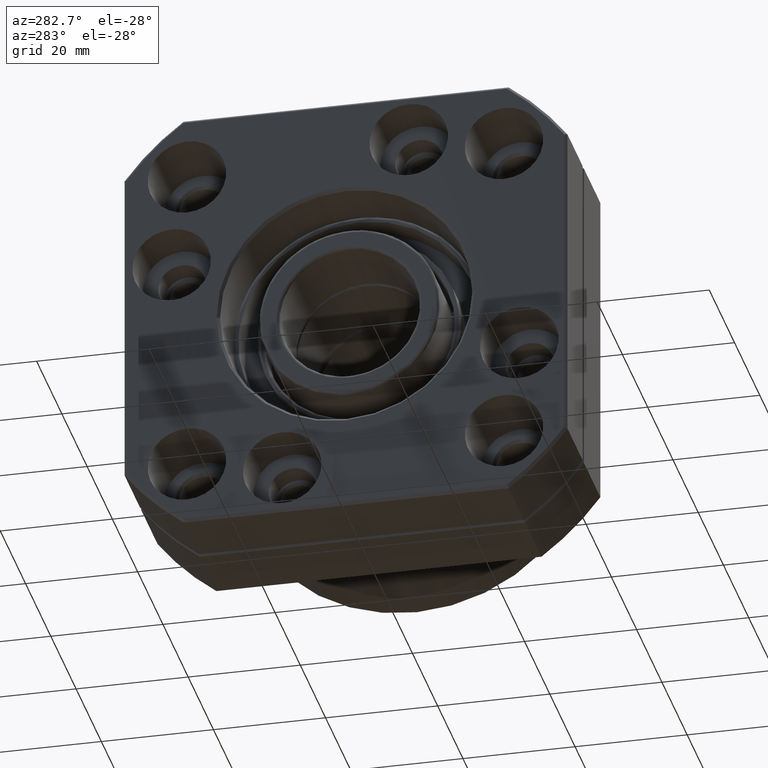
[diagram: clean part render]
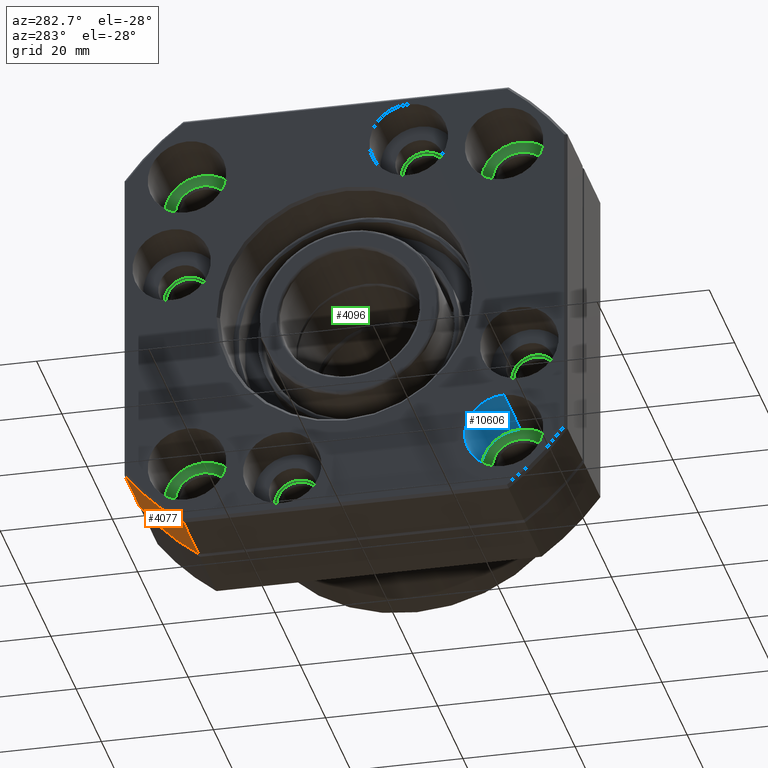
[diagram: same view with three faces highlighted in distinct colors, each labeled with its STEP entity id]
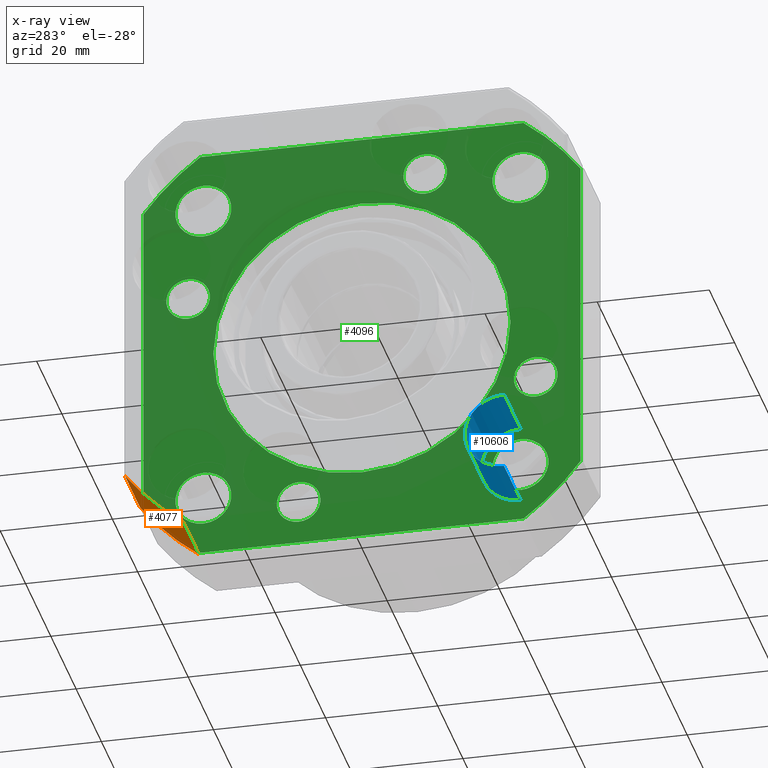
[diagram: x-ray of the same camera — body ghosted, the three highlighted faces saturated]
A machine part, auxiliary view with three faces highlighted in distinct colors.
The next image is the same camera in x-ray (body ghosted, the three faces saturated) — at least one of them is partly hidden behind the body in this view.
Their STEP definitions:

[orange] entity #4077 — the highlighted cylindrical surface (partial cylindrical patch) has radius 49 mm, axis along (-1, 0, 0).
#571 = AXIS2_PLACEMENT_3D ( 'NONE', #6466, #6602, #6622 ) ;
#823 = CARTESIAN_POINT ( 'NONE',  ( 4.000000000000003600, 39.50000000000000700, -28.99568933479594800 ) ) ;
#841 = DIRECTION ( 'NONE',  ( -1.000000000000000000, -0.0000000000000000000, -0.0000000000000000000 ) ) ;
#1069 = VERTEX_POINT ( 'NONE', #12395 ) ;
#1424 = AXIS2_PLACEMENT_3D ( 'NONE', #3484, #3439, #3408 ) ;
#1543 = DIRECTION ( 'NONE',  ( -1.000000000000000000, 0.0000000000000000000, 0.0000000000000000000 ) ) ;
#1557 = CARTESIAN_POINT ( 'NONE',  ( -55.83312411036067900, 28.99568933479596600, -39.49999999999999300 ) ) ;
#2716 = EDGE_CURVE ( 'NONE', #12218, #1069, #5253, .T. ) ;
#3012 = VERTEX_POINT ( 'NONE', #6260 ) ;
#3408 = DIRECTION ( 'NONE',  ( -3.540251991789402200E-017, -2.442490654175344400E-015, -1.000000000000000000 ) ) ;
#3439 = DIRECTION ( 'NONE',  ( -1.000000000000000000, -0.0000000000000000000, -0.0000000000000000000 ) ) ;
#3484 = CARTESIAN_POINT ( 'NONE',  ( -12.49999999999997000, 3.467012496382234800E-015, 3.166031116752753600E-015 ) ) ;
#3505 = CARTESIAN_POINT ( 'NONE',  ( -0.5000000000000004400, 39.50000000000000700, -28.99568933479595100 ) ) ;
#4077 = ADVANCED_FACE ( 'NONE', ( #11328 ), #10726, .T. ) ;
#4594 = VERTEX_POINT ( 'NONE', #3505 ) ;
#4956 = ORIENTED_EDGE ( 'NONE', *, *, #2716, .T. ) ;
#4957 = EDGE_CURVE ( 'NONE', #4594, #3012, #9100, .T. ) ;
#5136 = CIRCLE ( 'NONE', #11021, 49.00000000000000000 ) ;
#5253 = LINE ( 'NONE', #1557, #5414 ) ;
#5414 = VECTOR ( 'NONE', #1543, 1000.000000000000000 ) ;
#5789 = EDGE_CURVE ( 'NONE', #3012, #1069, #7624, .T. ) ;
#5946 = ORIENTED_EDGE ( 'NONE', *, *, #6033, .T. ) ;
#6033 = EDGE_CURVE ( 'NONE', #4594, #12218, #5136, .T. ) ;
#6137 = ORIENTED_EDGE ( 'NONE', *, *, #5789, .F. ) ;
#6260 = CARTESIAN_POINT ( 'NONE',  ( -12.49999999999997000, 39.50000000000000700, -28.99568933479596600 ) ) ;
#6466 = CARTESIAN_POINT ( 'NONE',  ( -55.83312411036067900, 3.467012496382234800E-015, 3.166031116752753600E-015 ) ) ;
#6602 = DIRECTION ( 'NONE',  ( -1.000000000000000000, 0.0000000000000000000, 0.0000000000000000000 ) ) ;
#6622 = DIRECTION ( 'NONE',  ( 0.0000000000000000000, 0.0000000000000000000, 1.000000000000000000 ) ) ;
#7492 = ORIENTED_EDGE ( 'NONE', *, *, #4957, .F. ) ;
#7624 = CIRCLE ( 'NONE', #1424, 49.00000000000000000 ) ;
#9100 = LINE ( 'NONE', #823, #11319 ) ;
#9926 = DIRECTION ( 'NONE',  ( 0.0000000000000000000, 0.0000000000000000000, 1.000000000000000000 ) ) ;
#10726 = CYLINDRICAL_SURFACE ( 'NONE', #571, 49.00000000000000000 ) ;
#11021 = AXIS2_PLACEMENT_3D ( 'NONE', #12537, #12523, #9926 ) ;
#11190 = EDGE_LOOP ( 'NONE', ( #4956, #6137, #7492, #5946 ) ) ;
#11319 = VECTOR ( 'NONE', #841, 1000.000000000000000 ) ;
#11328 = FACE_OUTER_BOUND ( 'NONE', #11190, .T. ) ;
#12049 = CARTESIAN_POINT ( 'NONE',  ( -0.5000000000000004400, 28.99568933479597300, -39.49999999999999300 ) ) ;
#12218 = VERTEX_POINT ( 'NONE', #12049 ) ;
#12395 = CARTESIAN_POINT ( 'NONE',  ( -12.49999999999997000, 28.99568933479597300, -39.50000000000000000 ) ) ;
#12523 = DIRECTION ( 'NONE',  ( -1.000000000000000000, 0.0000000000000000000, 0.0000000000000000000 ) ) ;
#12537 = CARTESIAN_POINT ( 'NONE',  ( -0.5000000000000004400, 3.467012496382234800E-015, 3.166031116752753600E-015 ) ) ;

[blue] entity #10606 — the highlighted cylindrical surface (partial cylindrical patch) has radius 7 mm, axis along (-1, 0, 0).
#38 = AXIS2_PLACEMENT_3D ( 'NONE', #12348, #10434, #9495 ) ;
#144 = AXIS2_PLACEMENT_3D ( 'NONE', #9983, #4177, #10926 ) ;
#162 = AXIS2_PLACEMENT_3D ( 'NONE', #6022, #7011, #5000 ) ;
#846 = ORIENTED_EDGE ( 'NONE', *, *, #7259, .F. ) ;
#2499 = LINE ( 'NONE', #2965, #2891 ) ;
#2528 = EDGE_CURVE ( 'NONE', #7585, #11306, #2499, .T. ) ;
#2891 = VECTOR ( 'NONE', #2974, 1000.000000000000000 ) ;
#2965 = CARTESIAN_POINT ( 'NONE',  ( -12.99999999999999800, -28.28427124746214000, -35.28427124746165300 ) ) ;
#2974 = DIRECTION ( 'NONE',  ( -1.000000000000000000, 0.0000000000000000000, 0.0000000000000000000 ) ) ;
#3173 = ORIENTED_EDGE ( 'NONE', *, *, #6341, .T. ) ;
#4177 = DIRECTION ( 'NONE',  ( -1.000000000000000000, 0.0000000000000000000, 0.0000000000000000000 ) ) ;
#4211 = DIRECTION ( 'NONE',  ( -1.000000000000000000, 0.0000000000000000000, 0.0000000000000000000 ) ) ;
#4529 = CARTESIAN_POINT ( 'NONE',  ( -12.99999999999999800, -28.28427124746214000, -21.28427124746166000 ) ) ;
#4725 = CARTESIAN_POINT ( 'NONE',  ( -12.99999999999999800, -28.28427124746214000, -35.28427124746165300 ) ) ;
#4970 = CIRCLE ( 'NONE', #38, 6.999999999999995600 ) ;
#5000 = DIRECTION ( 'NONE',  ( 0.0000000000000000000, 0.0000000000000000000, 1.000000000000000000 ) ) ;
#5109 = CIRCLE ( 'NONE', #144, 6.999999999999995600 ) ;
#5517 = CYLINDRICAL_SURFACE ( 'NONE', #162, 6.999999999999995600 ) ;
#5596 = VERTEX_POINT ( 'NONE', #6307 ) ;
#5839 = FACE_OUTER_BOUND ( 'NONE', #7355, .T. ) ;
#6022 = CARTESIAN_POINT ( 'NONE',  ( -12.99999999999999800, -28.28427124746214000, -28.28427124746165300 ) ) ;
#6199 = ORIENTED_EDGE ( 'NONE', *, *, #2528, .F. ) ;
#6230 = CARTESIAN_POINT ( 'NONE',  ( -12.99999999999999800, -28.28427124746214000, -21.28427124746166000 ) ) ;
#6307 = CARTESIAN_POINT ( 'NONE',  ( 0.0000000000000000000, -28.28427124746214000, -21.28427124746166000 ) ) ;
#6341 = EDGE_CURVE ( 'NONE', #10816, #11306, #4970, .T. ) ;
#6501 = CARTESIAN_POINT ( 'NONE',  ( 0.0000000000000000000, -28.28427124746214000, -35.28427124746165300 ) ) ;
#7011 = DIRECTION ( 'NONE',  ( -1.000000000000000000, 0.0000000000000000000, 0.0000000000000000000 ) ) ;
#7259 = EDGE_CURVE ( 'NONE', #5596, #7585, #5109, .T. ) ;
#7355 = EDGE_LOOP ( 'NONE', ( #6199, #846, #8462, #3173 ) ) ;
#7585 = VERTEX_POINT ( 'NONE', #6501 ) ;
#8424 = VECTOR ( 'NONE', #4211, 1000.000000000000000 ) ;
#8462 = ORIENTED_EDGE ( 'NONE', *, *, #11179, .T. ) ;
#9495 = DIRECTION ( 'NONE',  ( 0.0000000000000000000, 0.0000000000000000000, 1.000000000000000000 ) ) ;
#9983 = CARTESIAN_POINT ( 'NONE',  ( 0.0000000000000000000, -28.28427124746214000, -28.28427124746165300 ) ) ;
#10434 = DIRECTION ( 'NONE',  ( -1.000000000000000000, 0.0000000000000000000, 0.0000000000000000000 ) ) ;
#10606 = ADVANCED_FACE ( 'NONE', ( #5839 ), #5517, .F. ) ;
#10816 = VERTEX_POINT ( 'NONE', #4529 ) ;
#10903 = LINE ( 'NONE', #6230, #8424 ) ;
#10926 = DIRECTION ( 'NONE',  ( 0.0000000000000000000, 0.0000000000000000000, 1.000000000000000000 ) ) ;
#11179 = EDGE_CURVE ( 'NONE', #5596, #10816, #10903, .T. ) ;
#11306 = VERTEX_POINT ( 'NONE', #4725 ) ;
#12348 = CARTESIAN_POINT ( 'NONE',  ( -12.99999999999999800, -28.28427124746214000, -28.28427124746165300 ) ) ;

[green] entity #4096 — the highlighted planar face has unit normal (1, 0, 0).
#11 = DIRECTION ( 'NONE',  ( 0.0000000000000000000, 0.0000000000000000000, -1.000000000000000000 ) ) ;
#20 = DIRECTION ( 'NONE',  ( 1.000000000000000000, 0.0000000000000000000, 0.0000000000000000000 ) ) ;
#26 = CARTESIAN_POINT ( 'NONE',  ( 0.0000000000000000000, 0.0000000000000000000, 0.0000000000000000000 ) ) ;
#191 = VECTOR ( 'NONE', #5552, 1000.000000000000000 ) ;
#205 = LINE ( 'NONE', #5549, #191 ) ;
#427 = CIRCLE ( 'NONE', #1912, 3.900000000032203900 ) ;
#437 = CIRCLE ( 'NONE', #11391, 5.000000000052295900 ) ;
#521 = DIRECTION ( 'NONE',  ( 0.0000000000000000000, 0.0000000000000000000, 1.000000000000000000 ) ) ;
#550 = VERTEX_POINT ( 'NONE', #2583 ) ;
#588 = EDGE_CURVE ( 'NONE', #11071, #7751, #3024, .T. ) ;
#639 = CARTESIAN_POINT ( 'NONE',  ( 5.684341886080801500E-011, 31.00985648593501800, 7.386664729796949700 ) ) ;
#661 = CARTESIAN_POINT ( 'NONE',  ( -4.274358644806852700E-012, -28.28427124746194800, 33.28427124751415500 ) ) ;
#760 = AXIS2_PLACEMENT_3D ( 'NONE', #7289, #7276, #7272 ) ;
#832 = LINE ( 'NONE', #5820, #872 ) ;
#872 = VECTOR ( 'NONE', #6146, 1000.000000000000000 ) ;
#1022 = FACE_BOUND ( 'NONE', #2826, .T. ) ;
#1038 = AXIS2_PLACEMENT_3D ( 'NONE', #7127, #7110, #7084 ) ;
#1048 = CIRCLE ( 'NONE', #9651, 5.000000000052295900 ) ;
#1077 = DIRECTION ( 'NONE',  ( -1.000000000000000000, 0.0000000000000000000, 0.0000000000000000000 ) ) ;
#1127 = AXIS2_PLACEMENT_3D ( 'NONE', #1805, #8769, #2815 ) ;
#1173 = CIRCLE ( 'NONE', #3923, 48.50000000000000000 ) ;
#1207 = CIRCLE ( 'NONE', #1038, 5.000000000052295900 ) ;
#1306 = CIRCLE ( 'NONE', #11545, 4.999999999942883000 ) ;
#1497 = CARTESIAN_POINT ( 'NONE',  ( -4.274358644806852700E-012, -28.28427124746194800, 28.28427124746185600 ) ) ;
#1519 = DIRECTION ( 'NONE',  ( 0.0000000000000000000, 0.0000000000000000000, 1.000000000000000000 ) ) ;
#1529 = DIRECTION ( 'NONE',  ( -1.000000000000000000, 0.0000000000000000000, 0.0000000000000000000 ) ) ;
#1531 = CARTESIAN_POINT ( 'NONE',  ( 5.684341886080801500E-011, 28.28427124746194800, -28.28427124746185600 ) ) ;
#1589 = CIRCLE ( 'NONE', #11305, 26.49999999999998200 ) ;
#1622 = CIRCLE ( 'NONE', #9053, 3.900000000032203900 ) ;
#1709 = EDGE_LOOP ( 'NONE', ( #10455, #7363 ) ) ;
#1727 = AXIS2_PLACEMENT_3D ( 'NONE', #10189, #4412, #11140 ) ;
#1777 = CIRCLE ( 'NONE', #12019, 48.49999999999999300 ) ;
#1805 = CARTESIAN_POINT ( 'NONE',  ( 5.684341886080801500E-011, 28.28427124746194800, -28.28427124746185600 ) ) ;
#1855 = EDGE_CURVE ( 'NONE', #3868, #2887, #12486, .T. ) ;
#1876 = AXIS2_PLACEMENT_3D ( 'NONE', #6372, #6424, #6356 ) ;
#1912 = AXIS2_PLACEMENT_3D ( 'NONE', #9601, #9575, #9541 ) ;
#1974 = CARTESIAN_POINT ( 'NONE',  ( 0.0000000000000000000, 11.28666472974685900, -34.90985648593432700 ) ) ;
#2021 = EDGE_LOOP ( 'NONE', ( #10656, #11097 ) ) ;
#2022 = EDGE_CURVE ( 'NONE', #9536, #7306, #832, .T. ) ;
#2053 = EDGE_CURVE ( 'NONE', #4554, #5813, #205, .T. ) ;
#2111 = CIRCLE ( 'NONE', #7955, 3.899999999910792600 ) ;
#2178 = EDGE_LOOP ( 'NONE', ( #12357, #12602, #11526, #10543, #12616, #6330, #6275, #10620 ) ) ;
#2195 = DIRECTION ( 'NONE',  ( 0.0000000000000000000, 0.0000000000000000000, 1.000000000000000000 ) ) ;
#2210 = DIRECTION ( 'NONE',  ( -1.000000000000000000, 0.0000000000000000000, 0.0000000000000000000 ) ) ;
#2224 = CARTESIAN_POINT ( 'NONE',  ( 0.0000000000000000000, 11.28666472974685900, -31.00985648593505300 ) ) ;
#2312 = EDGE_CURVE ( 'NONE', #5241, #7379, #1622, .T. ) ;
#2356 = EDGE_CURVE ( 'NONE', #5813, #9536, #1777, .T. ) ;
#2494 = DIRECTION ( 'NONE',  ( 0.0000000000000000000, 0.0000000000000000000, 1.000000000000000000 ) ) ;
#2540 = AXIS2_PLACEMENT_3D ( 'NONE', #3623, #10410, #4639 ) ;
#2583 = CARTESIAN_POINT ( 'NONE',  ( 0.0000000000000000000, 38.99999999999999300, 28.83140648667699700 ) ) ;
#2588 = CARTESIAN_POINT ( 'NONE',  ( 0.0000000000000000000, 38.99999999999999300, -28.83140648667699000 ) ) ;
#2671 = EDGE_LOOP ( 'NONE', ( #11804, #12270 ) ) ;
#2675 = EDGE_LOOP ( 'NONE', ( #12301, #12408 ) ) ;
#2703 = EDGE_CURVE ( 'NONE', #6857, #6238, #1306, .T. ) ;
#2722 = DIRECTION ( 'NONE',  ( -1.000000000000000000, 0.0000000000000000000, 0.0000000000000000000 ) ) ;
#2791 = CARTESIAN_POINT ( 'NONE',  ( 0.0000000000000000000, 25.99999999999999600, 39.00000000000006400 ) ) ;
#2815 = DIRECTION ( 'NONE',  ( 0.0000000000000000000, 0.0000000000000000000, 1.000000000000000000 ) ) ;
#2826 = EDGE_LOOP ( 'NONE', ( #11058, #11895 ) ) ;
#2887 = VERTEX_POINT ( 'NONE', #639 ) ;
#2970 = EDGE_LOOP ( 'NONE', ( #11444, #11086 ) ) ;
#2985 = EDGE_CURVE ( 'NONE', #550, #10990, #1173, .T. ) ;
#2989 = EDGE_LOOP ( 'NONE', ( #11981, #11715 ) ) ;
#3024 = CIRCLE ( 'NONE', #11651, 3.899999999999275600 ) ;
#3153 = CARTESIAN_POINT ( 'NONE',  ( 0.0000000000000000000, -39.00000000000001400, -28.83140648667696100 ) ) ;
#3179 = CIRCLE ( 'NONE', #8719, 3.899999999910792600 ) ;
#3231 = EDGE_CURVE ( 'NONE', #7954, #550, #8485, .T. ) ;
#3248 = AXIS2_PLACEMENT_3D ( 'NONE', #1497, #8474, #2494 ) ;
#3499 = EDGE_CURVE ( 'NONE', #5540, #9370, #437, .T. ) ;
#3623 = CARTESIAN_POINT ( 'NONE',  ( 5.684341886080801500E-011, -28.28427124746194800, -28.28427124746185600 ) ) ;
#3754 = EDGE_CURVE ( 'NONE', #7751, #11071, #9326, .T. ) ;
#3823 = VECTOR ( 'NONE', #12579, 1000.000000000000000 ) ;
#3839 = CARTESIAN_POINT ( 'NONE',  ( 0.0000000000000000000, -39.00000000000000700, 28.83140648667698300 ) ) ;
#3868 = VERTEX_POINT ( 'NONE', #7948 ) ;
#3886 = EDGE_CURVE ( 'NONE', #7652, #5129, #1048, .T. ) ;
#3923 = AXIS2_PLACEMENT_3D ( 'NONE', #26, #20, #11 ) ;
#3960 = VERTEX_POINT ( 'NONE', #7310 ) ;
#3974 = DIRECTION ( 'NONE',  ( 0.0000000000000000000, 0.0000000000000000000, -1.000000000000000000 ) ) ;
#3984 = DIRECTION ( 'NONE',  ( 1.000000000000000000, 0.0000000000000000000, 0.0000000000000000000 ) ) ;
#3989 = CARTESIAN_POINT ( 'NONE',  ( 0.0000000000000000000, 0.0000000000000000000, 0.0000000000000000000 ) ) ;
#4096 = ADVANCED_FACE ( 'NONE', ( #9106, #8533, #6572, #1022, #5394, #8328, #12472, #12332, #10363, #12182 ), #6389, .F. ) ;
#4191 = DIRECTION ( 'NONE',  ( 0.0000000000000000000, 0.0000000000000000000, 1.000000000000000000 ) ) ;
#4204 = DIRECTION ( 'NONE',  ( -1.000000000000000000, 0.0000000000000000000, 0.0000000000000000000 ) ) ;
#4208 = CARTESIAN_POINT ( 'NONE',  ( -5.684341886080801500E-011, -11.28666472974664200, 31.00985648593513500 ) ) ;
#4286 = EDGE_LOOP ( 'NONE', ( #11659, #11614 ) ) ;
#4342 = EDGE_CURVE ( 'NONE', #5591, #10766, #11647, .T. ) ;
#4412 = DIRECTION ( 'NONE',  ( 1.000000000000000000, 0.0000000000000000000, 0.0000000000000000000 ) ) ;
#4523 = DIRECTION ( 'NONE',  ( -1.000000000000000000, 0.0000000000000000000, 0.0000000000000000000 ) ) ;
#4554 = VERTEX_POINT ( 'NONE', #3839 ) ;
#4639 = DIRECTION ( 'NONE',  ( 0.0000000000000000000, 0.0000000000000000000, 1.000000000000000000 ) ) ;
#4776 = CIRCLE ( 'NONE', #10517, 3.899999999950018100 ) ;
#4920 = CARTESIAN_POINT ( 'NONE',  ( -4.274358644806852700E-012, -28.28427124746194800, 23.28427124740956000 ) ) ;
#5088 = DIRECTION ( 'NONE',  ( 0.0000000000000000000, 0.0000000000000000000, 1.000000000000000000 ) ) ;
#5092 = DIRECTION ( 'NONE',  ( -1.000000000000000000, 0.0000000000000000000, 0.0000000000000000000 ) ) ;
#5107 = CARTESIAN_POINT ( 'NONE',  ( 0.0000000000000000000, 0.0000000000000000000, 0.0000000000000000000 ) ) ;
#5129 = VERTEX_POINT ( 'NONE', #4920 ) ;
#5241 = VERTEX_POINT ( 'NONE', #11728 ) ;
#5255 = CARTESIAN_POINT ( 'NONE',  ( 0.0000000000000000000, -28.83140648667689700, -39.00000000000006400 ) ) ;
#5363 = EDGE_CURVE ( 'NONE', #7379, #5241, #427, .T. ) ;
#5394 = FACE_BOUND ( 'NONE', #2970, .T. ) ;
#5413 = VERTEX_POINT ( 'NONE', #9120 ) ;
#5432 = EDGE_CURVE ( 'NONE', #3960, #11133, #2111, .T. ) ;
#5470 = AXIS2_PLACEMENT_3D ( 'NONE', #5681, #12405, #6703 ) ;
#5514 = EDGE_LOOP ( 'NONE', ( #11767, #11757 ) ) ;
#5524 = EDGE_CURVE ( 'NONE', #9370, #5540, #1207, .T. ) ;
#5540 = VERTEX_POINT ( 'NONE', #7322 ) ;
#5549 = CARTESIAN_POINT ( 'NONE',  ( 0.0000000000000000000, -39.00000000000000700, -1.925929944387235900E-030 ) ) ;
#5552 = DIRECTION ( 'NONE',  ( 0.0000000000000000000, 0.0000000000000000000, -1.000000000000000000 ) ) ;
#5591 = VERTEX_POINT ( 'NONE', #6846 ) ;
#5681 = CARTESIAN_POINT ( 'NONE',  ( 0.0000000000000000000, 0.0000000000000000000, 0.0000000000000000000 ) ) ;
#5786 = AXIS2_PLACEMENT_3D ( 'NONE', #10293, #4523, #11250 ) ;
#5813 = VERTEX_POINT ( 'NONE', #3153 ) ;
#5820 = CARTESIAN_POINT ( 'NONE',  ( 0.0000000000000000000, 25.99999999999999600, -39.00000000000006400 ) ) ;
#6013 = VERTEX_POINT ( 'NONE', #11524 ) ;
#6146 = DIRECTION ( 'NONE',  ( 0.0000000000000000000, 1.000000000000000000, 0.0000000000000000000 ) ) ;
#6238 = VERTEX_POINT ( 'NONE', #8353 ) ;
#6275 = ORIENTED_EDGE ( 'NONE', *, *, #2356, .F. ) ;
#6330 = ORIENTED_EDGE ( 'NONE', *, *, #2022, .F. ) ;
#6356 = DIRECTION ( 'NONE',  ( 0.0000000000000000000, 0.0000000000000000000, -1.000000000000000000 ) ) ;
#6372 = CARTESIAN_POINT ( 'NONE',  ( 0.0000000000000000000, 25.99999999999999600, -1.925929944387235900E-030 ) ) ;
#6389 = PLANE ( 'NONE',  #1876 ) ;
#6424 = DIRECTION ( 'NONE',  ( 1.000000000000000000, 0.0000000000000000000, 0.0000000000000000000 ) ) ;
#6429 = CARTESIAN_POINT ( 'NONE',  ( 5.684341886080801500E-011, -28.28427124746194800, -23.28427124746212900 ) ) ;
#6488 = LINE ( 'NONE', #2791, #3823 ) ;
#6542 = EDGE_CURVE ( 'NONE', #6238, #6857, #8648, .T. ) ;
#6548 = DIRECTION ( 'NONE',  ( -1.000000000000000000, 0.0000000000000000000, 0.0000000000000000000 ) ) ;
#6572 = FACE_BOUND ( 'NONE', #2021, .T. ) ;
#6703 = DIRECTION ( 'NONE',  ( 0.0000000000000000000, 0.0000000000000000000, -1.000000000000000000 ) ) ;
#6846 = CARTESIAN_POINT ( 'NONE',  ( 0.0000000000000000000, 3.245314017740483800E-015, -26.49999999999998200 ) ) ;
#6857 = VERTEX_POINT ( 'NONE', #7643 ) ;
#7009 = VERTEX_POINT ( 'NONE', #6429 ) ;
#7068 = CARTESIAN_POINT ( 'NONE',  ( 0.0000000000000000000, 0.0000000000000000000, 0.0000000000000000000 ) ) ;
#7073 = CARTESIAN_POINT ( 'NONE',  ( 0.0000000000000000000, -31.00985648593509600, -7.386664729835956700 ) ) ;
#7084 = DIRECTION ( 'NONE',  ( 0.0000000000000000000, 0.0000000000000000000, 1.000000000000000000 ) ) ;
#7110 = DIRECTION ( 'NONE',  ( -1.000000000000000000, 0.0000000000000000000, 0.0000000000000000000 ) ) ;
#7127 = CARTESIAN_POINT ( 'NONE',  ( -4.274358644806852700E-012, 28.28427124746194800, 28.28427124746185600 ) ) ;
#7248 = CARTESIAN_POINT ( 'NONE',  ( 0.0000000000000000000, 28.83140648667689700, -39.00000000000006400 ) ) ;
#7272 = DIRECTION ( 'NONE',  ( 0.0000000000000000000, 0.0000000000000000000, 1.000000000000000000 ) ) ;
#7276 = DIRECTION ( 'NONE',  ( -1.000000000000000000, 0.0000000000000000000, 0.0000000000000000000 ) ) ;
#7289 = CARTESIAN_POINT ( 'NONE',  ( 5.684341886080801500E-011, 31.00985648593501800, 11.28666472974696900 ) ) ;
#7306 = VERTEX_POINT ( 'NONE', #7248 ) ;
#7310 = CARTESIAN_POINT ( 'NONE',  ( 0.0000000000000000000, -31.00985648593509600, -15.18666472965754200 ) ) ;
#7322 = CARTESIAN_POINT ( 'NONE',  ( -4.274358644806852700E-012, 28.28427124746194800, 23.28427124740956000 ) ) ;
#7363 = ORIENTED_EDGE ( 'NONE', *, *, #10819, .F. ) ;
#7379 = VERTEX_POINT ( 'NONE', #7982 ) ;
#7643 = CARTESIAN_POINT ( 'NONE',  ( 5.684341886080801500E-011, 28.28427124746194800, -33.28427124740473900 ) ) ;
#7652 = VERTEX_POINT ( 'NONE', #661 ) ;
#7751 = VERTEX_POINT ( 'NONE', #1974 ) ;
#7777 = DIRECTION ( 'NONE',  ( 0.0000000000000000000, 0.0000000000000000000, 1.000000000000000000 ) ) ;
#7788 = DIRECTION ( 'NONE',  ( -1.000000000000000000, 0.0000000000000000000, 0.0000000000000000000 ) ) ;
#7792 = CARTESIAN_POINT ( 'NONE',  ( -4.274358644806852700E-012, -28.28427124746194800, 28.28427124746185600 ) ) ;
#7910 = EDGE_CURVE ( 'NONE', #6013, #7009, #11251, .T. ) ;
#7948 = CARTESIAN_POINT ( 'NONE',  ( 5.684341886080801500E-011, 31.00985648593501800, 15.18666472969698600 ) ) ;
#7954 = VERTEX_POINT ( 'NONE', #2588 ) ;
#7955 = AXIS2_PLACEMENT_3D ( 'NONE', #8748, #8694, #8681 ) ;
#7982 = CARTESIAN_POINT ( 'NONE',  ( -5.684341886080801500E-011, -11.28666472974664200, 27.10985648590293100 ) ) ;
#8044 = DIRECTION ( 'NONE',  ( 0.0000000000000000000, 0.0000000000000000000, 1.000000000000000000 ) ) ;
#8159 = EDGE_CURVE ( 'NONE', #10766, #5591, #1589, .T. ) ;
#8241 = EDGE_CURVE ( 'NONE', #7009, #6013, #10799, .T. ) ;
#8328 = FACE_BOUND ( 'NONE', #1709, .T. ) ;
#8353 = CARTESIAN_POINT ( 'NONE',  ( 5.684341886080801500E-011, 28.28427124746194800, -23.28427124751897300 ) ) ;
#8474 = DIRECTION ( 'NONE',  ( -1.000000000000000000, 0.0000000000000000000, 0.0000000000000000000 ) ) ;
#8485 = LINE ( 'NONE', #11567, #11887 ) ;
#8533 = FACE_OUTER_BOUND ( 'NONE', #2178, .T. ) ;
#8648 = CIRCLE ( 'NONE', #1127, 4.999999999942883000 ) ;
#8660 = EDGE_CURVE ( 'NONE', #11133, #3960, #3179, .T. ) ;
#8679 = CARTESIAN_POINT ( 'NONE',  ( 5.684341886080801500E-011, 31.00985648593501800, 11.28666472974696900 ) ) ;
#8681 = DIRECTION ( 'NONE',  ( 0.0000000000000000000, 0.0000000000000000000, 1.000000000000000000 ) ) ;
#8692 = DIRECTION ( 'NONE',  ( 0.0000000000000000000, 0.0000000000000000000, 1.000000000000000000 ) ) ;
#8694 = DIRECTION ( 'NONE',  ( -1.000000000000000000, 0.0000000000000000000, 0.0000000000000000000 ) ) ;
#8704 = DIRECTION ( 'NONE',  ( -1.000000000000000000, 0.0000000000000000000, 0.0000000000000000000 ) ) ;
#8706 = CARTESIAN_POINT ( 'NONE',  ( 0.0000000000000000000, 11.28666472974685900, -31.00985648593505300 ) ) ;
#8719 = AXIS2_PLACEMENT_3D ( 'NONE', #12256, #6548, #521 ) ;
#8748 = CARTESIAN_POINT ( 'NONE',  ( 0.0000000000000000000, -31.00985648593509600, -11.28666472974674800 ) ) ;
#8769 = DIRECTION ( 'NONE',  ( -1.000000000000000000, 0.0000000000000000000, 0.0000000000000000000 ) ) ;
#8804 = CARTESIAN_POINT ( 'NONE',  ( -4.274358644806852700E-012, 28.28427124746194800, 33.28427124751415500 ) ) ;
#8869 = CARTESIAN_POINT ( 'NONE',  ( 0.0000000000000000000, 11.28666472974685900, -27.10985648593577900 ) ) ;
#9053 = AXIS2_PLACEMENT_3D ( 'NONE', #4208, #4204, #4191 ) ;
#9106 = FACE_BOUND ( 'NONE', #2675, .T. ) ;
#9120 = CARTESIAN_POINT ( 'NONE',  ( 0.0000000000000000000, -28.83140648667691200, 39.00000000000006400 ) ) ;
#9182 = EDGE_CURVE ( 'NONE', #2887, #3868, #4776, .T. ) ;
#9326 = CIRCLE ( 'NONE', #11136, 3.899999999999275600 ) ;
#9370 = VERTEX_POINT ( 'NONE', #8804 ) ;
#9536 = VERTEX_POINT ( 'NONE', #5255 ) ;
#9541 = DIRECTION ( 'NONE',  ( 0.0000000000000000000, 0.0000000000000000000, 1.000000000000000000 ) ) ;
#9575 = DIRECTION ( 'NONE',  ( -1.000000000000000000, 0.0000000000000000000, 0.0000000000000000000 ) ) ;
#9599 = DIRECTION ( 'NONE',  ( 0.0000000000000000000, 0.0000000000000000000, 1.000000000000000000 ) ) ;
#9601 = CARTESIAN_POINT ( 'NONE',  ( -5.684341886080801500E-011, -11.28666472974664200, 31.00985648593513500 ) ) ;
#9651 = AXIS2_PLACEMENT_3D ( 'NONE', #7792, #7788, #7777 ) ;
#9848 = EDGE_CURVE ( 'NONE', #10990, #5413, #6488, .T. ) ;
#9860 = DIRECTION ( 'NONE',  ( 0.0000000000000000000, 0.0000000000000000000, 1.000000000000000000 ) ) ;
#9868 = DIRECTION ( 'NONE',  ( -1.000000000000000000, 0.0000000000000000000, 0.0000000000000000000 ) ) ;
#9869 = CARTESIAN_POINT ( 'NONE',  ( -4.274358644806852700E-012, 28.28427124746194800, 28.28427124746185600 ) ) ;
#10060 = CARTESIAN_POINT ( 'NONE',  ( 0.0000000000000000000, 0.0000000000000000000, 26.49999999999998200 ) ) ;
#10189 = CARTESIAN_POINT ( 'NONE',  ( 0.0000000000000000000, 0.0000000000000000000, 0.0000000000000000000 ) ) ;
#10293 = CARTESIAN_POINT ( 'NONE',  ( 5.684341886080801500E-011, -28.28427124746194800, -28.28427124746185600 ) ) ;
#10310 = CIRCLE ( 'NONE', #5470, 48.49999999999999300 ) ;
#10363 = FACE_BOUND ( 'NONE', #5514, .T. ) ;
#10410 = DIRECTION ( 'NONE',  ( -1.000000000000000000, 0.0000000000000000000, 0.0000000000000000000 ) ) ;
#10455 = ORIENTED_EDGE ( 'NONE', *, *, #3886, .F. ) ;
#10517 = AXIS2_PLACEMENT_3D ( 'NONE', #8679, #2722, #9599 ) ;
#10543 = ORIENTED_EDGE ( 'NONE', *, *, #3231, .F. ) ;
#10620 = ORIENTED_EDGE ( 'NONE', *, *, #2053, .F. ) ;
#10628 = CARTESIAN_POINT ( 'NONE',  ( 0.0000000000000000000, 28.83140648667690400, 39.00000000000006400 ) ) ;
#10656 = ORIENTED_EDGE ( 'NONE', *, *, #8159, .F. ) ;
#10763 = CIRCLE ( 'NONE', #3248, 5.000000000052295900 ) ;
#10766 = VERTEX_POINT ( 'NONE', #10060 ) ;
#10799 = CIRCLE ( 'NONE', #2540, 4.999999999999726400 ) ;
#10819 = EDGE_CURVE ( 'NONE', #5129, #7652, #10763, .T. ) ;
#10990 = VERTEX_POINT ( 'NONE', #10628 ) ;
#11056 = AXIS2_PLACEMENT_3D ( 'NONE', #5107, #5092, #5088 ) ;
#11058 = ORIENTED_EDGE ( 'NONE', *, *, #6542, .F. ) ;
#11071 = VERTEX_POINT ( 'NONE', #8869 ) ;
#11086 = ORIENTED_EDGE ( 'NONE', *, *, #3499, .F. ) ;
#11097 = ORIENTED_EDGE ( 'NONE', *, *, #4342, .F. ) ;
#11133 = VERTEX_POINT ( 'NONE', #7073 ) ;
#11136 = AXIS2_PLACEMENT_3D ( 'NONE', #8706, #8704, #8692 ) ;
#11140 = DIRECTION ( 'NONE',  ( 0.0000000000000000000, 0.0000000000000000000, -1.000000000000000000 ) ) ;
#11250 = DIRECTION ( 'NONE',  ( 0.0000000000000000000, 0.0000000000000000000, 1.000000000000000000 ) ) ;
#11251 = CIRCLE ( 'NONE', #5786, 4.999999999999726400 ) ;
#11255 = EDGE_CURVE ( 'NONE', #7306, #7954, #10310, .T. ) ;
#11305 = AXIS2_PLACEMENT_3D ( 'NONE', #7068, #1077, #8044 ) ;
#11391 = AXIS2_PLACEMENT_3D ( 'NONE', #9869, #9868, #9860 ) ;
#11444 = ORIENTED_EDGE ( 'NONE', *, *, #5524, .F. ) ;
#11524 = CARTESIAN_POINT ( 'NONE',  ( 5.684341886080801500E-011, -28.28427124746194800, -33.28427124746158200 ) ) ;
#11526 = ORIENTED_EDGE ( 'NONE', *, *, #2985, .F. ) ;
#11545 = AXIS2_PLACEMENT_3D ( 'NONE', #1531, #1529, #1519 ) ;
#11567 = CARTESIAN_POINT ( 'NONE',  ( 0.0000000000000000000, 38.99999999999999300, -1.925929944387235900E-030 ) ) ;
#11614 = ORIENTED_EDGE ( 'NONE', *, *, #5363, .F. ) ;
#11647 = CIRCLE ( 'NONE', #11056, 26.49999999999998200 ) ;
#11651 = AXIS2_PLACEMENT_3D ( 'NONE', #2224, #2210, #2195 ) ;
#11659 = ORIENTED_EDGE ( 'NONE', *, *, #2312, .F. ) ;
#11715 = ORIENTED_EDGE ( 'NONE', *, *, #9182, .F. ) ;
#11728 = CARTESIAN_POINT ( 'NONE',  ( -5.684341886080801500E-011, -11.28666472974664200, 34.90985648596733900 ) ) ;
#11757 = ORIENTED_EDGE ( 'NONE', *, *, #3754, .F. ) ;
#11767 = ORIENTED_EDGE ( 'NONE', *, *, #588, .F. ) ;
#11804 = ORIENTED_EDGE ( 'NONE', *, *, #8241, .F. ) ;
#11824 = EDGE_CURVE ( 'NONE', #5413, #4554, #11959, .T. ) ;
#11839 = DIRECTION ( 'NONE',  ( -0.0000000000000000000, -0.0000000000000000000, 1.000000000000000000 ) ) ;
#11887 = VECTOR ( 'NONE', #11839, 1000.000000000000000 ) ;
#11895 = ORIENTED_EDGE ( 'NONE', *, *, #2703, .F. ) ;
#11959 = CIRCLE ( 'NONE', #1727, 48.50000000000000000 ) ;
#11981 = ORIENTED_EDGE ( 'NONE', *, *, #1855, .F. ) ;
#12019 = AXIS2_PLACEMENT_3D ( 'NONE', #3989, #3984, #3974 ) ;
#12182 = FACE_BOUND ( 'NONE', #4286, .T. ) ;
#12256 = CARTESIAN_POINT ( 'NONE',  ( 0.0000000000000000000, -31.00985648593509600, -11.28666472974674800 ) ) ;
#12270 = ORIENTED_EDGE ( 'NONE', *, *, #7910, .F. ) ;
#12301 = ORIENTED_EDGE ( 'NONE', *, *, #8660, .F. ) ;
#12332 = FACE_BOUND ( 'NONE', #2989, .T. ) ;
#12357 = ORIENTED_EDGE ( 'NONE', *, *, #11824, .F. ) ;
#12405 = DIRECTION ( 'NONE',  ( 1.000000000000000000, 0.0000000000000000000, 0.0000000000000000000 ) ) ;
#12408 = ORIENTED_EDGE ( 'NONE', *, *, #5432, .F. ) ;
#12472 = FACE_BOUND ( 'NONE', #2671, .T. ) ;
#12486 = CIRCLE ( 'NONE', #760, 3.899999999950018100 ) ;
#12579 = DIRECTION ( 'NONE',  ( -0.0000000000000000000, -1.000000000000000000, -0.0000000000000000000 ) ) ;
#12602 = ORIENTED_EDGE ( 'NONE', *, *, #9848, .F. ) ;
#12616 = ORIENTED_EDGE ( 'NONE', *, *, #11255, .F. ) ;